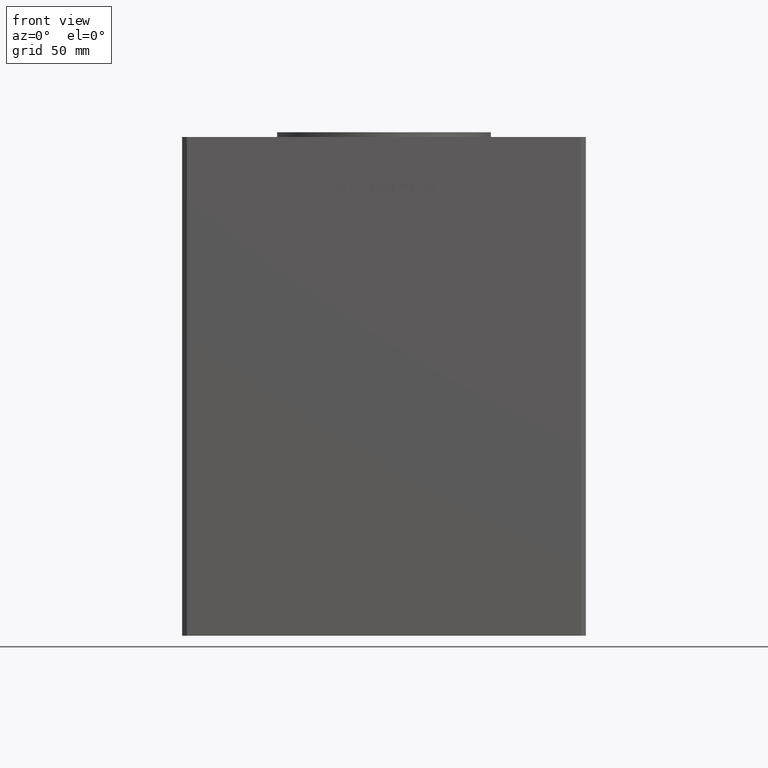
[diagram: clean part render]
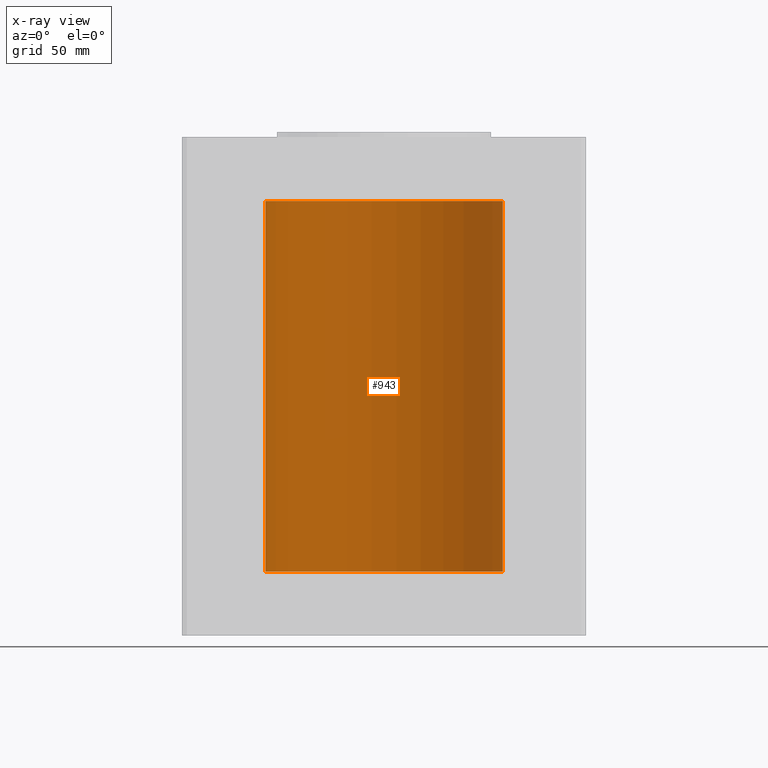
[diagram: x-ray — body ghosted, one internal face saturated and labeled with its STEP entity id]
A machine part, front view, then the same camera in x-ray: the body is ghosted and one INTERNAL B-rep face — a face not visible from any outside direction — is saturated and labeled: STEP entity #943.
In plain terms, the highlighted cylindrical surface (partial cylindrical patch) has radius 50 mm, axis along (-0, -0, -1).
Its self-contained STEP definition (entity closure, byte-faithful):
#943 = ADVANCED_FACE ( 'NONE', ( #26277 ), #39146, .F. ) ;
#3040 = CARTESIAN_POINT ( 'NONE',  ( 0.000000000000000000, 0.000000000000000000, 156.0000000000000000 ) ) ;
#3959 = AXIS2_PLACEMENT_3D ( 'NONE', #45636, #17942, #34009 ) ;
#6447 = DIRECTION ( 'NONE',  ( -0.000000000000000000, -0.000000000000000000, -1.000000000000000000 ) ) ;
#7380 = CIRCLE ( 'NONE', #26726, 50.00000000000000000 ) ;
#7470 = VERTEX_POINT ( 'NONE', #21085 ) ;
#10461 = VECTOR ( 'NONE', #6447, 1000.000000000000000 ) ;
#11476 = VERTEX_POINT ( 'NONE', #31266 ) ;
#13858 = ORIENTED_EDGE ( 'NONE', *, *, #52076, .T. ) ;
#14341 = CARTESIAN_POINT ( 'NONE',  ( -50.00000000000000000, 0.000000000000000000, 156.0000000000000000 ) ) ;
#14894 = CIRCLE ( 'NONE', #3959, 50.00000000000000000 ) ;
#15415 = VERTEX_POINT ( 'NONE', #50849 ) ;
#17942 = DIRECTION ( 'NONE',  ( -0.000000000000000000, 0.000000000000000000, 1.000000000000000000 ) ) ;
#18034 = LINE ( 'NONE', #14341, #10461 ) ;
#18211 = DIRECTION ( 'NONE',  ( -0.000000000000000000, 0.000000000000000000, 1.000000000000000000 ) ) ;
#21085 = CARTESIAN_POINT ( 'NONE',  ( 50.00000000000000000, 6.123233995736766085E-15, 156.0000000000000000 ) ) ;
#23564 = DIRECTION ( 'NONE',  ( -0.000000000000000000, -0.000000000000000000, -1.000000000000000000 ) ) ;
#23615 = DIRECTION ( 'NONE',  ( -1.000000000000000000, 0.000000000000000000, 0.000000000000000000 ) ) ;
#24019 = EDGE_CURVE ( 'NONE', #49805, #15415, #14894, .T. ) ;
#25744 = EDGE_CURVE ( 'NONE', #7470, #11476, #7380, .T. ) ;
#26057 = VECTOR ( 'NONE', #23564, 1000.000000000000000 ) ;
#26146 = DIRECTION ( 'NONE',  ( 1.000000000000000000, 0.000000000000000000, 0.000000000000000000 ) ) ;
#26277 = FACE_OUTER_BOUND ( 'NONE', #26478, .T. ) ;
#26478 = EDGE_LOOP ( 'NONE', ( #31170, #43317, #13858, #28792 ) ) ;
#26726 = AXIS2_PLACEMENT_3D ( 'NONE', #37998, #18211, #26146 ) ;
#27548 = DIRECTION ( 'NONE',  ( -0.000000000000000000, -0.000000000000000000, -1.000000000000000000 ) ) ;
#28792 = ORIENTED_EDGE ( 'NONE', *, *, #24019, .F. ) ;
#31170 = ORIENTED_EDGE ( 'NONE', *, *, #35613, .F. ) ;
#31266 = CARTESIAN_POINT ( 'NONE',  ( -50.00000000000000000, 0.000000000000000000, 156.0000000000000000 ) ) ;
#34009 = DIRECTION ( 'NONE',  ( 1.000000000000000000, 0.000000000000000000, 0.000000000000000000 ) ) ;
#35613 = EDGE_CURVE ( 'NONE', #7470, #49805, #39355, .T. ) ;
#37998 = CARTESIAN_POINT ( 'NONE',  ( 0.000000000000000000, 0.000000000000000000, 156.0000000000000000 ) ) ;
#39095 = CARTESIAN_POINT ( 'NONE',  ( 50.00000000000000000, 6.123233995736766085E-15, 156.0000000000000000 ) ) ;
#39146 = CYLINDRICAL_SURFACE ( 'NONE', #44417, 50.00000000000000000 ) ;
#39355 = LINE ( 'NONE', #39095, #26057 ) ;
#40062 = CARTESIAN_POINT ( 'NONE',  ( 50.00000000000000000, 6.123233995736766085E-15, 0.000000000000000000 ) ) ;
#43317 = ORIENTED_EDGE ( 'NONE', *, *, #25744, .T. ) ;
#44417 = AXIS2_PLACEMENT_3D ( 'NONE', #3040, #27548, #23615 ) ;
#45636 = CARTESIAN_POINT ( 'NONE',  ( 0.000000000000000000, 0.000000000000000000, 0.000000000000000000 ) ) ;
#49805 = VERTEX_POINT ( 'NONE', #40062 ) ;
#50849 = CARTESIAN_POINT ( 'NONE',  ( -50.00000000000000000, 0.000000000000000000, 0.000000000000000000 ) ) ;
#52076 = EDGE_CURVE ( 'NONE', #11476, #15415, #18034, .T. ) ;